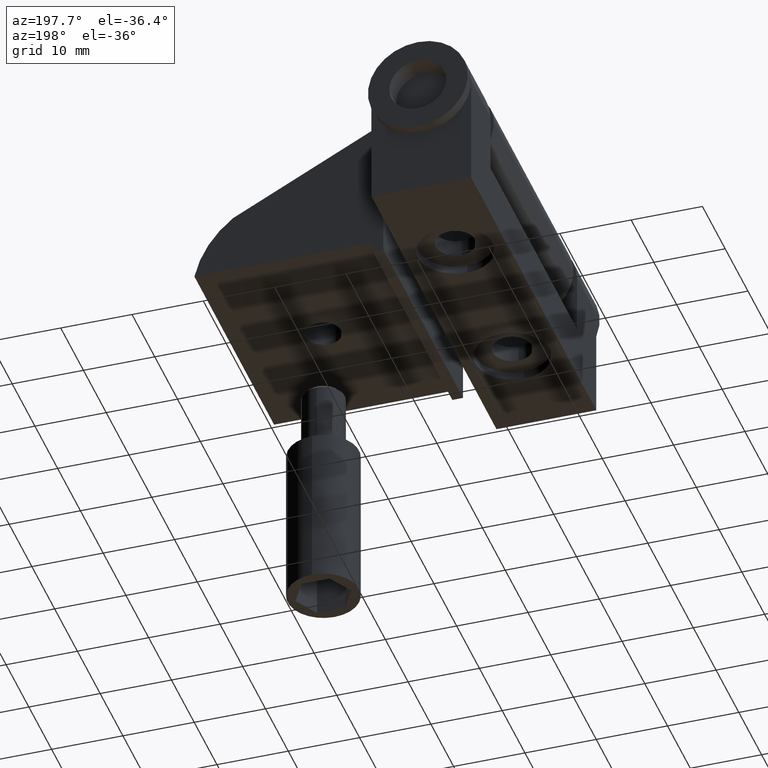
[diagram: clean part render]
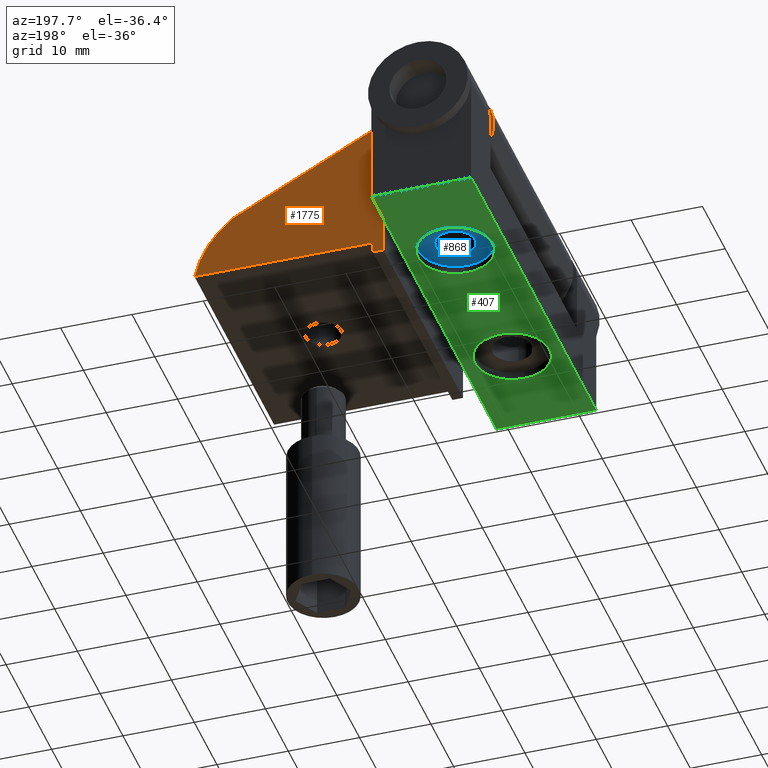
[diagram: same view with three faces highlighted in distinct colors, each labeled with its STEP entity id]
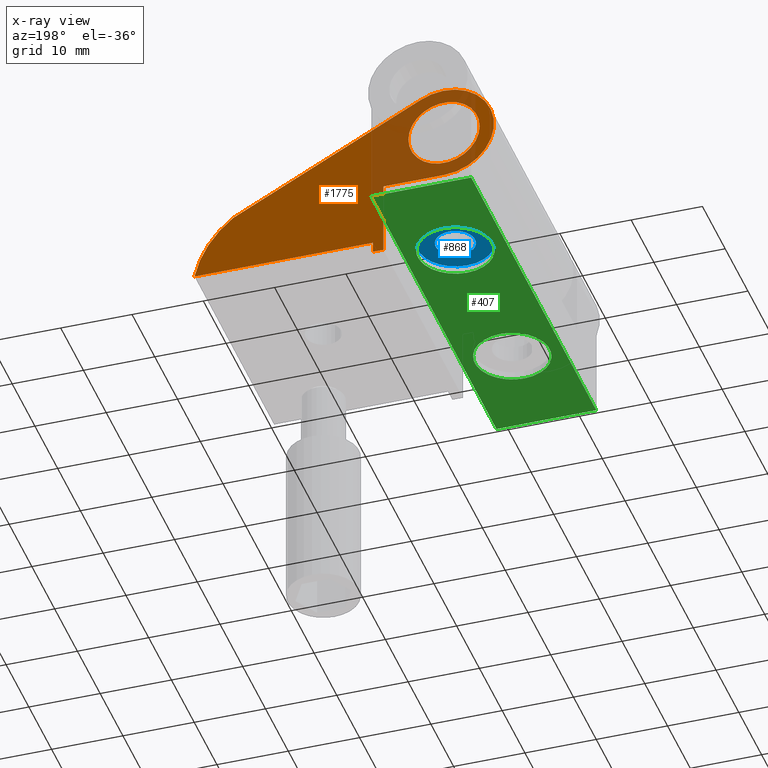
[diagram: x-ray of the same camera — body ghosted, the three highlighted faces saturated]
A machine part, auxiliary view with three faces highlighted in distinct colors.
The next image is the same camera in x-ray (body ghosted, the three faces saturated) — at least one of them is partly hidden behind the body in this view.
Their STEP definitions:

[orange] entity #1775 — the highlighted planar face has unit normal (0, -1, 0).
#1438=CARTESIAN_POINT('',(22.567507063109588,17.499999999999996,8.492642398337123));
#1439=VERTEX_POINT('',#1438);
#1440=CARTESIAN_POINT('',(-3.625073380421100,17.500000000000000,22.132688669128584));
#1441=VERTEX_POINT('',#1440);
#1442=CARTESIAN_POINT('',(22.567507063109588,17.499999999999996,8.492642398337123));
#1443=DIRECTION('',(-0.886940756927017,0.0,0.461883203528479));
#1444=VECTOR('',#1443,29.531375392286723);
#1445=LINE('',#1442,#1444);
#1446=EDGE_CURVE('',#1439,#1441,#1445,.T.);
#1478=CARTESIAN_POINT('',(-6.999999999999999,17.500000000000000,8.999999999999998));
#1479=VERTEX_POINT('',#1478);
#1480=CARTESIAN_POINT('',(-7.000000000000001,17.500000000000007,16.000000000000004));
#1481=DIRECTION('',(9.244464E-033,-1.000000000000000,6.123234E-017));
#1482=DIRECTION('',(0.482132374225555,5.364555E-017,0.876098381304080));
#1483=AXIS2_PLACEMENT_3D('',#1480,#1481,#1482);
#1484=CIRCLE('',#1483,7.0);
#1485=EDGE_CURVE('',#1441,#1479,#1484,.T.);
#1511=CARTESIAN_POINT('',(1.500000000000002,17.500000000000000,8.999999999999998));
#1512=VERTEX_POINT('',#1511);
#1513=CARTESIAN_POINT('',(-6.999999999999998,17.500000000000000,8.999999999999998));
#1514=DIRECTION('',(1.0,0.0,0.0));
#1515=VECTOR('',#1514,8.500000000000000);
#1516=LINE('',#1513,#1515);
#1517=EDGE_CURVE('',#1479,#1512,#1516,.T.);
#1542=CARTESIAN_POINT('',(1.500000000000002,17.500000000000000,-1.500000000000001));
#1543=VERTEX_POINT('',#1542);
#1544=CARTESIAN_POINT('',(1.500000000000002,17.500000000000000,8.999999999999998));
#1545=DIRECTION('',(0.0,0.0,-1.0));
#1546=VECTOR('',#1545,10.500000000000000);
#1547=LINE('',#1544,#1546);
#1548=EDGE_CURVE('',#1512,#1543,#1547,.T.);
#1573=CARTESIAN_POINT('',(3.0,17.500000000000000,-1.500000000000001));
#1574=VERTEX_POINT('',#1573);
#1575=CARTESIAN_POINT('',(1.500000000000000,17.500000000000000,-1.500000000000001));
#1576=DIRECTION('',(1.0,0.0,0.0));
#1577=VECTOR('',#1576,1.500000000000000);
#1578=LINE('',#1575,#1577);
#1579=EDGE_CURVE('',#1543,#1574,#1578,.T.);
#1604=CARTESIAN_POINT('',(3.0,17.500000000000000,-1.071566E-015));
#1605=VERTEX_POINT('',#1604);
#1606=CARTESIAN_POINT('',(3.0,17.500000000000000,-1.500000000000001));
#1607=DIRECTION('',(0.0,0.0,1.0));
#1608=VECTOR('',#1607,1.500000000000000);
#1609=LINE('',#1606,#1608);
#1610=EDGE_CURVE('',#1574,#1605,#1609,.T.);
#1635=CARTESIAN_POINT('',(28.0,17.499999999999996,-1.071566E-015));
#1636=VERTEX_POINT('',#1635);
#1637=CARTESIAN_POINT('',(3.0,17.499999999999996,-1.071566E-015));
#1638=DIRECTION('',(1.0,0.0,0.0));
#1639=VECTOR('',#1638,25.0);
#1640=LINE('',#1637,#1639);
#1641=EDGE_CURVE('',#1605,#1636,#1640,.T.);
#1686=CARTESIAN_POINT('',(14.044251561273541,17.500000000000000,-2.943256814816210));
#1687=DIRECTION('',(3.081488E-033,-1.0,6.123234E-017));
#1688=DIRECTION('',(0.978476161307603,1.263590E-017,0.206359884068435));
#1689=AXIS2_PLACEMENT_3D('',#1686,#1687,#1688);
#1690=CIRCLE('',#1689,14.262737295588733);
#1691=EDGE_CURVE('',#1636,#1439,#1690,.T.);
#1710=CARTESIAN_POINT('',(-2.0,17.500000000000000,15.999999999999998));
#1711=VERTEX_POINT('',#1710);
#1712=CARTESIAN_POINT('',(-12.0,17.500000000000000,15.999999999999998));
#1713=VERTEX_POINT('',#1712);
#1714=CARTESIAN_POINT('',(-6.999999999999999,17.500000000000000,15.999999999999998));
#1715=DIRECTION('',(7.547469E-049,1.0,-6.123234E-017));
#1716=DIRECTION('',(1.0,0.0,1.232595E-032));
#1717=AXIS2_PLACEMENT_3D('',#1714,#1715,#1716);
#1718=CIRCLE('',#1717,5.0);
#1719=EDGE_CURVE('',#1711,#1713,#1718,.T.);
#1721=CARTESIAN_POINT('',(-6.999999999999999,17.500000000000000,15.999999999999998));
#1722=DIRECTION('',(7.547469E-049,1.0,-6.123234E-017));
#1723=DIRECTION('',(1.0,0.0,1.232595E-032));
#1724=AXIS2_PLACEMENT_3D('',#1721,#1722,#1723);
#1725=CIRCLE('',#1724,5.0);
#1726=EDGE_CURVE('',#1713,#1711,#1725,.T.);
#1756=CARTESIAN_POINT('',(-18.200120000618313,17.500000000000000,-3.950120000638777));
#1757=DIRECTION('',(0.0,-1.0,0.0));
#1758=DIRECTION('',(1.0,0.0,0.0));
#1759=AXIS2_PLACEMENT_3D('',#1756,#1757,#1758);
#1760=PLANE('',#1759);
#1761=ORIENTED_EDGE('',*,*,#1691,.F.);
#1762=ORIENTED_EDGE('',*,*,#1641,.F.);
#1763=ORIENTED_EDGE('',*,*,#1610,.F.);
#1764=ORIENTED_EDGE('',*,*,#1579,.F.);
#1765=ORIENTED_EDGE('',*,*,#1548,.F.);
#1766=ORIENTED_EDGE('',*,*,#1517,.F.);
#1767=ORIENTED_EDGE('',*,*,#1485,.F.);
#1768=ORIENTED_EDGE('',*,*,#1446,.F.);
#1769=EDGE_LOOP('',(#1761,#1762,#1763,#1764,#1765,#1766,#1767,#1768));
#1770=FACE_OUTER_BOUND('',#1769,.T.);
#1771=ORIENTED_EDGE('',*,*,#1726,.F.);
#1772=ORIENTED_EDGE('',*,*,#1719,.F.);
#1773=EDGE_LOOP('',(#1771,#1772));
#1774=FACE_BOUND('',#1773,.T.);
#1775=ADVANCED_FACE('',(#1770,#1774),#1760,.F.);

[blue] entity #868 — the highlighted planar face has unit normal (0, 0, 1).
#809=CARTESIAN_POINT('',(-6.999999999999999,9.750000000000000,1.200000000000045));
#810=VERTEX_POINT('',#809);
#817=CARTESIAN_POINT('',(-6.999999999999999,15.250000000000000,1.200000000000045));
#818=VERTEX_POINT('',#817);
#819=CARTESIAN_POINT('',(-6.999999999999999,12.500000000000000,1.200000000000045));
#820=DIRECTION('',(8.576552E-033,-6.123234E-017,-1.0));
#821=DIRECTION('',(-6.123234E-017,-1.0,6.123234E-017));
#822=AXIS2_PLACEMENT_3D('',#819,#820,#821);
#823=CIRCLE('',#822,2.750000000000000);
#824=EDGE_CURVE('',#810,#818,#823,.T.);
#826=CARTESIAN_POINT('',(-6.999999999999999,12.500000000000000,1.200000000000045));
#827=DIRECTION('',(8.576552E-033,-6.123234E-017,-1.0));
#828=DIRECTION('',(-6.123234E-017,-1.0,6.123234E-017));
#829=AXIS2_PLACEMENT_3D('',#826,#827,#828);
#830=CIRCLE('',#829,2.750000000000000);
#831=EDGE_CURVE('',#818,#810,#830,.T.);
#839=CARTESIAN_POINT('',(3.500000000000000,23.0,1.200000000000044));
#840=DIRECTION('',(0.0,0.0,1.0));
#841=DIRECTION('',(-1.0,0.0,0.0));
#842=AXIS2_PLACEMENT_3D('',#839,#840,#841);
#843=PLANE('',#842);
#844=CARTESIAN_POINT('',(-6.999999999999999,7.250000000000000,1.200000000000045));
#845=VERTEX_POINT('',#844);
#846=CARTESIAN_POINT('',(-6.999999999999999,17.750000000000000,1.200000000000044));
#847=VERTEX_POINT('',#846);
#848=CARTESIAN_POINT('',(-6.999999999999999,12.500000000000000,1.200000000000045));
#849=DIRECTION('',(8.576552E-033,-6.123234E-017,-1.0));
#850=DIRECTION('',(-6.123234E-017,-1.0,6.123234E-017));
#851=AXIS2_PLACEMENT_3D('',#848,#849,#850);
#852=CIRCLE('',#851,5.250000000000000);
#853=EDGE_CURVE('',#845,#847,#852,.T.);
#854=ORIENTED_EDGE('',*,*,#853,.T.);
#855=CARTESIAN_POINT('',(-6.999999999999999,12.500000000000000,1.200000000000045));
#856=DIRECTION('',(8.576552E-033,-6.123234E-017,-1.0));
#857=DIRECTION('',(-6.123234E-017,-1.0,6.123234E-017));
#858=AXIS2_PLACEMENT_3D('',#855,#856,#857);
#859=CIRCLE('',#858,5.250000000000000);
#860=EDGE_CURVE('',#847,#845,#859,.T.);
#861=ORIENTED_EDGE('',*,*,#860,.T.);
#862=EDGE_LOOP('',(#854,#861));
#863=FACE_OUTER_BOUND('',#862,.T.);
#864=ORIENTED_EDGE('',*,*,#831,.F.);
#865=ORIENTED_EDGE('',*,*,#824,.F.);
#866=EDGE_LOOP('',(#864,#865));
#867=FACE_BOUND('',#866,.T.);
#868=ADVANCED_FACE('',(#863,#867),#843,.F.);

[green] entity #407 — the highlighted planar face has unit normal (0, 0, -1).
#328=CARTESIAN_POINT('',(-14.000000000000002,-27.500000000000000,1.683889E-015));
#329=DIRECTION('',(0.0,0.0,-1.0));
#330=DIRECTION('',(0.0,1.0,0.0));
#331=AXIS2_PLACEMENT_3D('',#328,#329,#330);
#332=PLANE('',#331);
#333=CARTESIAN_POINT('',(-14.000000000000002,-27.500000000000000,1.683889E-015));
#334=VERTEX_POINT('',#333);
#335=CARTESIAN_POINT('',(-13.999999999999998,27.500000000000000,-1.683889E-015));
#336=VERTEX_POINT('',#335);
#337=CARTESIAN_POINT('',(-14.000000000000002,-27.500000000000000,1.683889E-015));
#338=DIRECTION('',(0.0,1.0,0.0));
#339=VECTOR('',#338,55.0);
#340=LINE('',#337,#339);
#341=EDGE_CURVE('',#334,#336,#340,.T.);
#342=ORIENTED_EDGE('',*,*,#341,.T.);
#343=CARTESIAN_POINT('',(1.776357E-015,27.500000000000000,-1.683889E-015));
#344=VERTEX_POINT('',#343);
#345=CARTESIAN_POINT('',(-13.999999999999998,27.500000000000000,-1.683889E-015));
#346=DIRECTION('',(1.0,0.0,0.0));
#347=VECTOR('',#346,14.0);
#348=LINE('',#345,#347);
#349=EDGE_CURVE('',#336,#344,#348,.T.);
#350=ORIENTED_EDGE('',*,*,#349,.T.);
#351=CARTESIAN_POINT('',(-1.776357E-015,-27.500000000000000,1.683889E-015));
#352=VERTEX_POINT('',#351);
#353=CARTESIAN_POINT('',(-1.776357E-015,-27.500000000000000,1.683889E-015));
#354=DIRECTION('',(0.0,1.0,0.0));
#355=VECTOR('',#354,55.0);
#356=LINE('',#353,#355);
#357=EDGE_CURVE('',#352,#344,#356,.T.);
#358=ORIENTED_EDGE('',*,*,#357,.F.);
#359=CARTESIAN_POINT('',(-14.000000000000002,-27.500000000000000,1.683889E-015));
#360=DIRECTION('',(1.0,0.0,0.0));
#361=VECTOR('',#360,14.0);
#362=LINE('',#359,#361);
#363=EDGE_CURVE('',#334,#352,#362,.T.);
#364=ORIENTED_EDGE('',*,*,#363,.F.);
#365=EDGE_LOOP('',(#342,#350,#358,#364));
#366=FACE_OUTER_BOUND('',#365,.T.);
#367=CARTESIAN_POINT('',(-7.0,-7.250000000000000,4.439345E-016));
#368=VERTEX_POINT('',#367);
#369=CARTESIAN_POINT('',(-7.000000000000001,-17.750000000000000,1.086874E-015));
#370=VERTEX_POINT('',#369);
#371=CARTESIAN_POINT('',(-7.000000000000001,-12.500000000000000,7.654042E-016));
#372=DIRECTION('',(8.576552E-033,-6.123234E-017,-1.0));
#373=DIRECTION('',(-6.123234E-017,-1.0,6.123234E-017));
#374=AXIS2_PLACEMENT_3D('',#371,#372,#373);
#375=CIRCLE('',#374,5.250000000000000);
#376=EDGE_CURVE('',#368,#370,#375,.T.);
#377=ORIENTED_EDGE('',*,*,#376,.F.);
#378=CARTESIAN_POINT('',(-7.000000000000001,-12.500000000000000,7.654042E-016));
#379=DIRECTION('',(8.576552E-033,-6.123234E-017,-1.0));
#380=DIRECTION('',(-6.123234E-017,-1.0,6.123234E-017));
#381=AXIS2_PLACEMENT_3D('',#378,#379,#380);
#382=CIRCLE('',#381,5.250000000000000);
#383=EDGE_CURVE('',#370,#368,#382,.T.);
#384=ORIENTED_EDGE('',*,*,#383,.F.);
#385=EDGE_LOOP('',(#377,#384));
#386=FACE_BOUND('',#385,.T.);
#387=CARTESIAN_POINT('',(-6.999999999999999,17.750000000000000,-1.086874E-015));
#388=VERTEX_POINT('',#387);
#389=CARTESIAN_POINT('',(-7.0,7.250000000000000,-4.439345E-016));
#390=VERTEX_POINT('',#389);
#391=CARTESIAN_POINT('',(-6.999999999999999,12.500000000000000,-7.654042E-016));
#392=DIRECTION('',(8.576552E-033,-6.123234E-017,-1.0));
#393=DIRECTION('',(-6.123234E-017,-1.0,6.123234E-017));
#394=AXIS2_PLACEMENT_3D('',#391,#392,#393);
#395=CIRCLE('',#394,5.250000000000000);
#396=EDGE_CURVE('',#388,#390,#395,.T.);
#397=ORIENTED_EDGE('',*,*,#396,.F.);
#398=CARTESIAN_POINT('',(-6.999999999999999,12.500000000000000,-7.654042E-016));
#399=DIRECTION('',(8.576552E-033,-6.123234E-017,-1.0));
#400=DIRECTION('',(-6.123234E-017,-1.0,6.123234E-017));
#401=AXIS2_PLACEMENT_3D('',#398,#399,#400);
#402=CIRCLE('',#401,5.250000000000000);
#403=EDGE_CURVE('',#390,#388,#402,.T.);
#404=ORIENTED_EDGE('',*,*,#403,.F.);
#405=EDGE_LOOP('',(#397,#404));
#406=FACE_BOUND('',#405,.T.);
#407=ADVANCED_FACE('',(#366,#386,#406),#332,.T.);